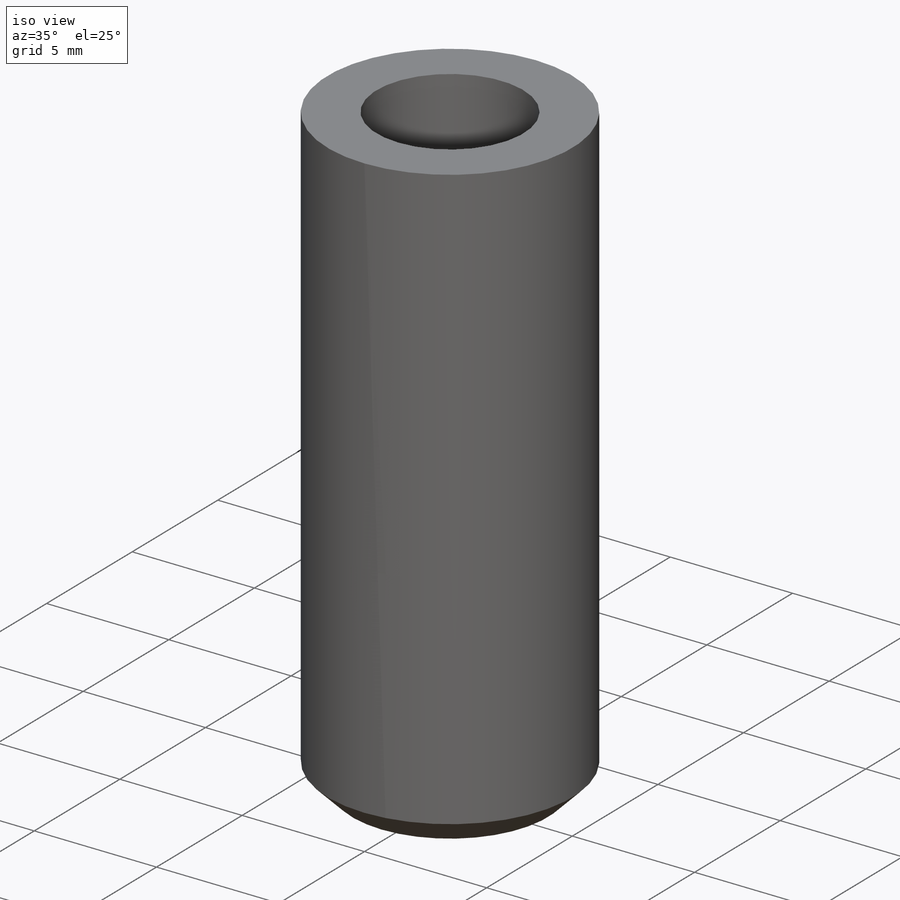
[diagram: iso view]
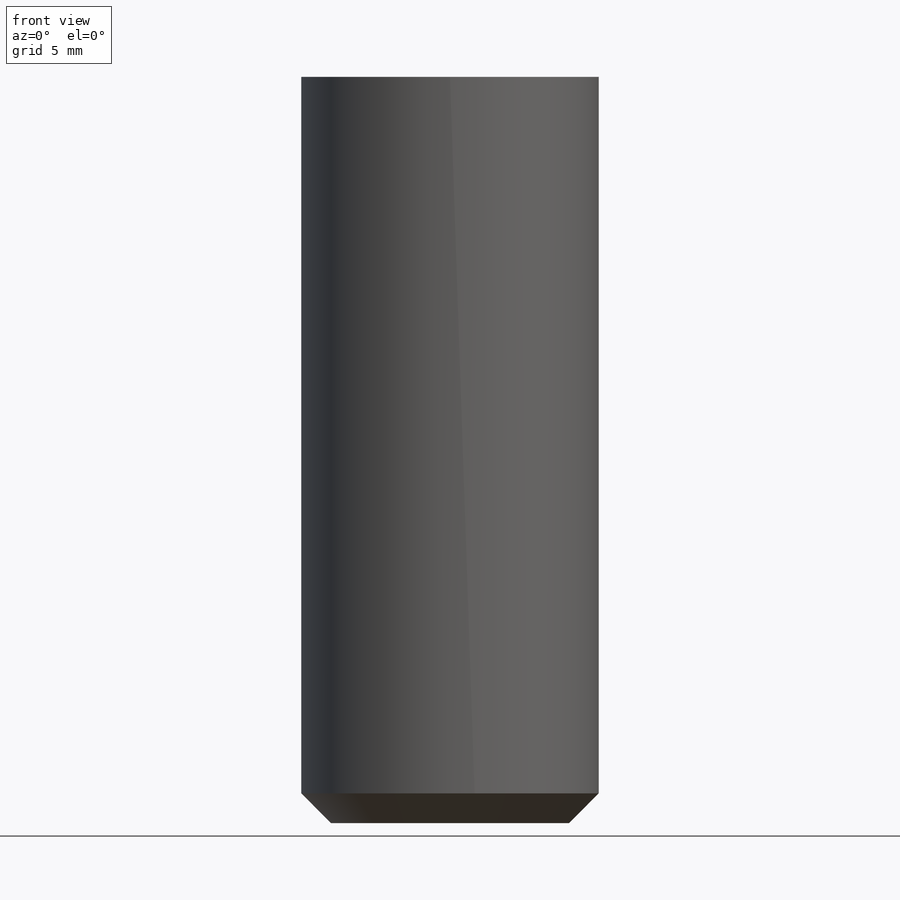
[diagram: front view]
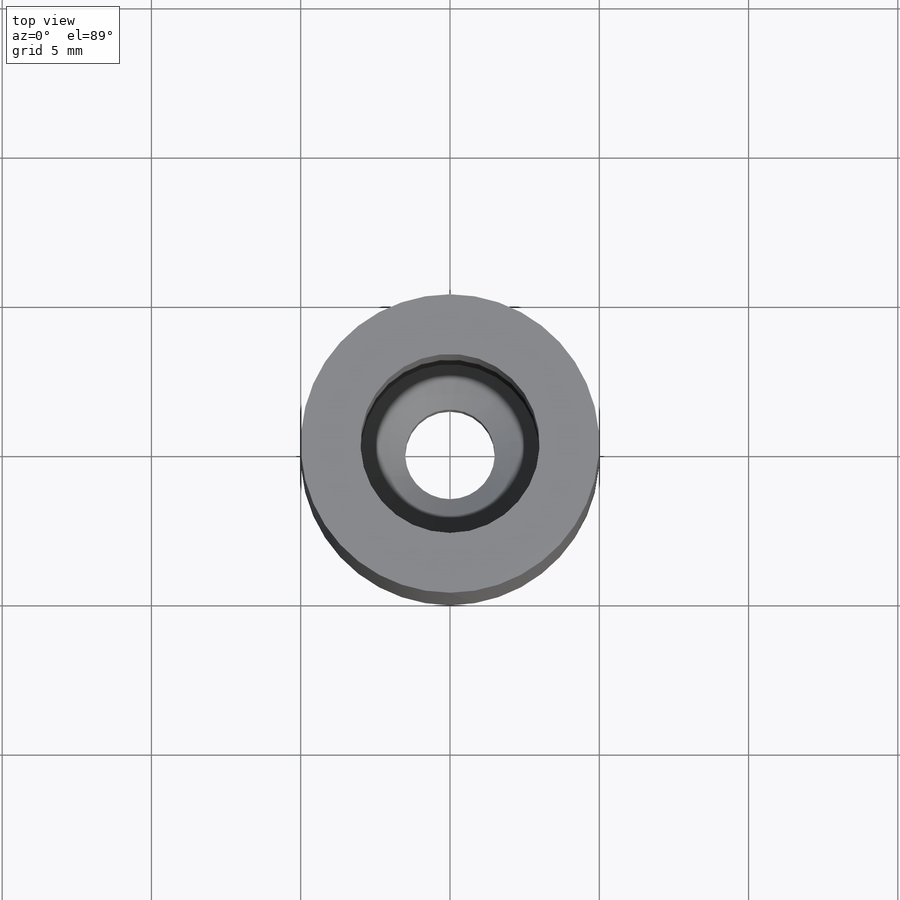
[diagram: top view]
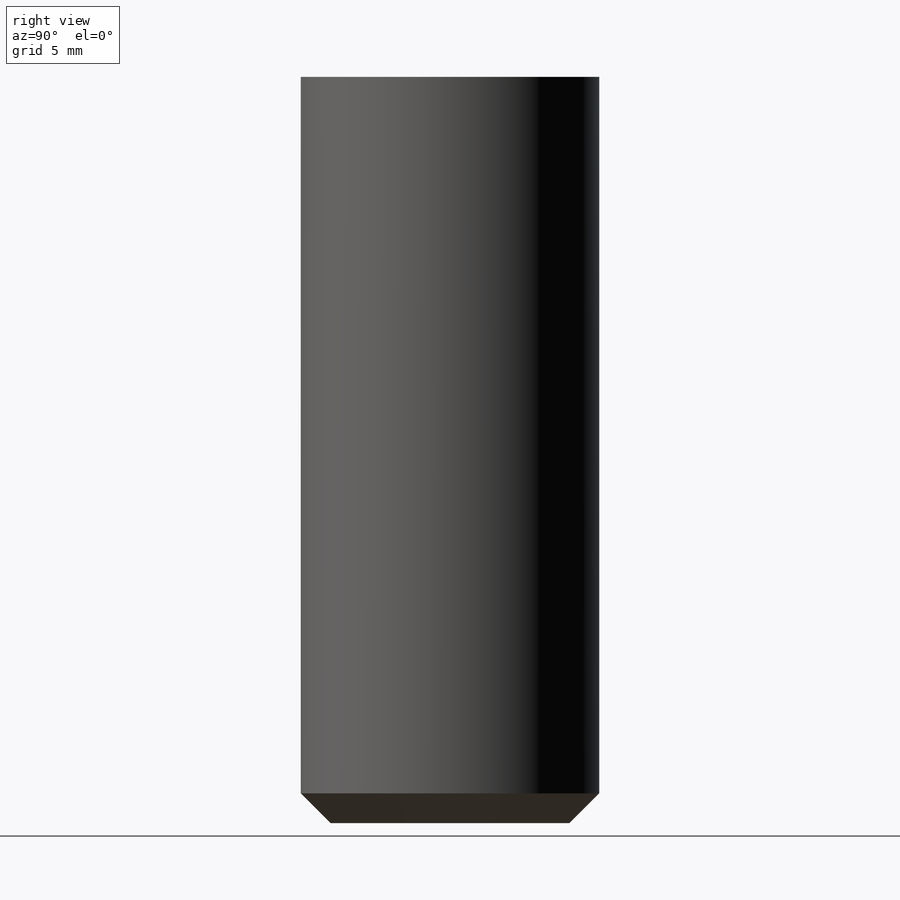
[diagram: right view]
SOLIDWORKS PART (.sldprt)
format: sldprt  version: not decoded by parser v0  size: 203,776 bytes
history: native  units: mm
features: sketch x4, thread x2, material x1, revolve x1, hole x1, cut_extrude x1 (+11 scaffold rows collapsed)
feature tree (21):
  scaffold x11  (default folders/planes/origin — collapsed)
  material  "Cast Alloy Steel"
  sketch  "Sketch3"  dims[c1.D1=5.0mm c1.D2=2.0mm c1.D3=25.0mm c2.D1=5.0mm c2.D2=4.0mm c2.D4=~1.414214mm c3.D4=45.0deg c3.D1=5.0mm c3.D2=5.0mm c4.D1=~1.414214mm c5.D1=45.0deg c5.D3=25.0mm c5.D4=~1.414214mm]
  revolve  "Revolve1"  [1 undecoded]
  thread  "Cosmetic Thread2"  Diameter=10mm  [1 undecoded]
  hole  "Ø6.0 (6) Diameter Hole1"  Diameter=6mm Depth=20mm
  sketch  "Sketch15"
  sketch  "Sketch14"  dims[hole-wizard template sketch: 47 standard entries collapsed; hole parameters kept: c15.Hole Depth=20.0mm c15.D3=~14.816244mm c15.Drill Angle=118.0deg]
  thread  "Cosmetic Thread3"  Diameter=10mm  [1 undecoded]
  sketch  "Sketch16"  dims[D1=3.0mm]
  cut_extrude  "Cut-Extrude5"  [1 undecoded]
decode coverage: 6 of 9 modeling features carry decoded parameters
note: ~ marks probable driven/reference dimensions
note: 4 parameter values undecoded
note: suppression state not decoded; provenance and decode notes live in map.json
